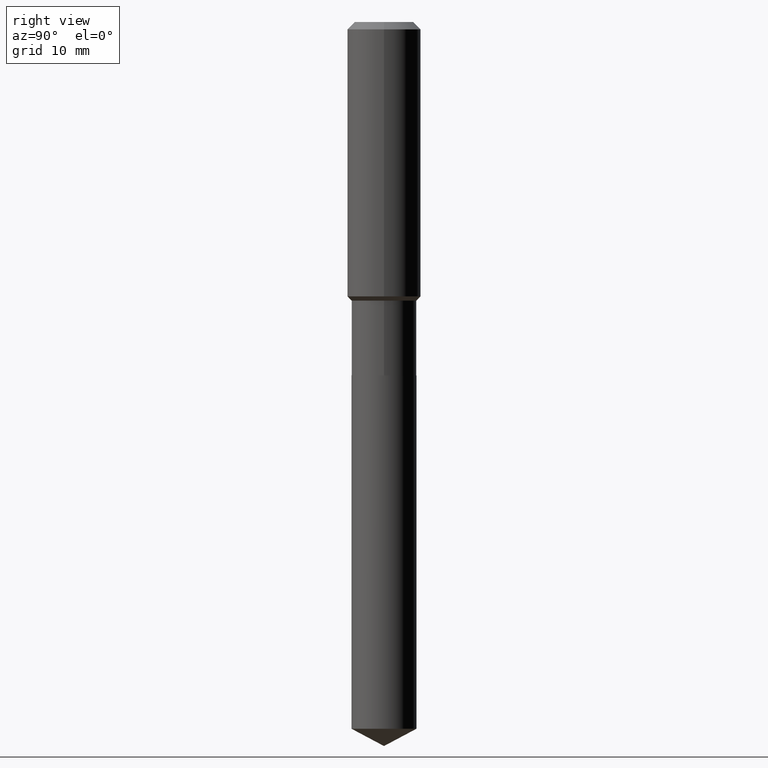
[diagram: clean part render]
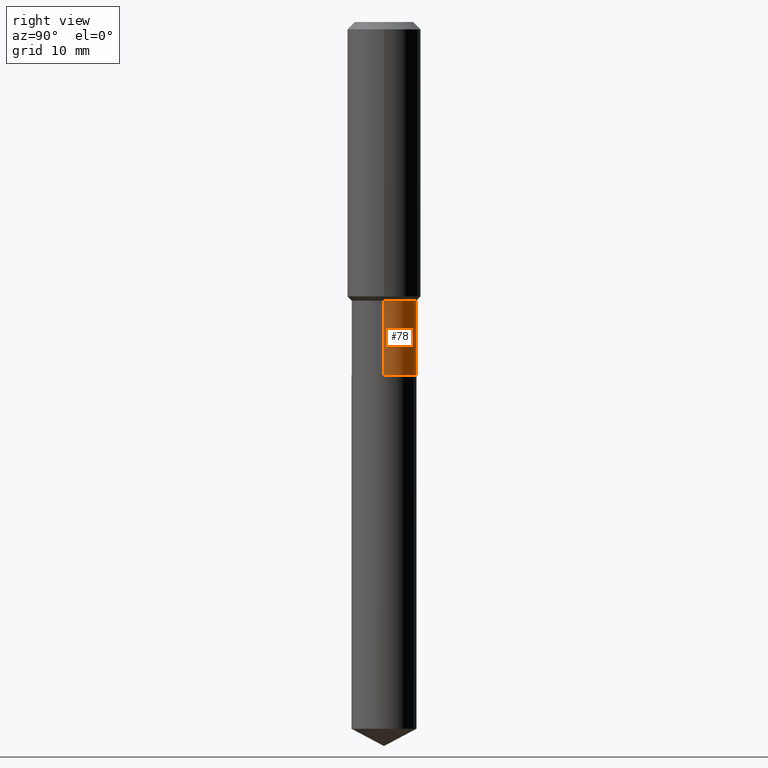
[diagram: same view with one face highlighted and labeled with its STEP entity id]
A machine part, right view. The second image highlights one B-rep face of the part: STEP entity #78.
In plain terms, the highlighted cylindrical surface (edge-blend (fillet) strip) has radius 5.2997 mm, axis along (-0, 0, 1).
Its self-contained STEP definition (entity closure, byte-faithful):
#6 = CARTESIAN_POINT ( 'NONE',  ( -0.2086499999999999744, 1.482547418163448856E-15, -1.026335806581685820E-29 ) ) ;
#11 = CARTESIAN_POINT ( 'NONE',  ( 0.2086500000000000021, -9.372881654124416326E-15, -2.267199999999999438 ) ) ;
#39 = EDGE_CURVE ( 'NONE', #198, #344, #358, .T. ) ;
#44 = CYLINDRICAL_SURFACE ( 'NONE', #304, 0.2086499999999999744 ) ;
#61 = VECTOR ( 'NONE', #334, 39.37007874015748143 ) ;
#77 = EDGE_LOOP ( 'NONE', ( #474, #107, #316, #153 ) ) ;
#78 = ADVANCED_FACE ( 'NONE', ( #244 ), #44, .T. ) ;
#82 = VERTEX_POINT ( 'NONE', #411 ) ;
#83 = VECTOR ( 'NONE', #315, 39.37007874015748143 ) ;
#107 = ORIENTED_EDGE ( 'NONE', *, *, #201, .T. ) ;
#110 = DIRECTION ( 'NONE',  ( -2.445468806185136597E-29, 3.491481338843145583E-15, 1.000000000000000000 ) ) ;
#133 = CARTESIAN_POINT ( 'NONE',  ( 4.372009131697785890E-29, -6.242070337583773496E-15, -1.787799999999999390 ) ) ;
#141 = CIRCLE ( 'NONE', #359, 0.2086499999999999466 ) ;
#147 = CARTESIAN_POINT ( 'NONE',  ( 5.544366877382941194E-29, -7.915886491425178171E-15, -2.267199999999999438 ) ) ;
#153 = ORIENTED_EDGE ( 'NONE', *, *, #387, .F. ) ;
#176 = DIRECTION ( 'NONE',  ( -2.445468806185136597E-29, 3.491481338843145583E-15, 1.000000000000000000 ) ) ;
#179 = CARTESIAN_POINT ( 'NONE',  ( -0.2086499999999999466, -5.596430996341026386E-15, -1.787799999999999390 ) ) ;
#198 = VERTEX_POINT ( 'NONE', #11 ) ;
#201 = EDGE_CURVE ( 'NONE', #344, #275, #259, .T. ) ;
#238 = DIRECTION ( 'NONE',  ( 1.000000000000000000, -6.982962677686265922E-15, 0.000000000000000000 ) ) ;
#244 = FACE_OUTER_BOUND ( 'NONE', #77, .T. ) ;
#259 = LINE ( 'NONE', #6, #83 ) ;
#275 = VERTEX_POINT ( 'NONE', #179 ) ;
#295 = LINE ( 'NONE', #368, #61 ) ;
#296 = AXIS2_PLACEMENT_3D ( 'NONE', #147, #419, #238 ) ;
#297 = CARTESIAN_POINT ( 'NONE',  ( -0.2086500000000000021, -5.596430996341025597E-15, -2.267199999999999438 ) ) ;
#302 = EDGE_CURVE ( 'NONE', #82, #275, #141, .T. ) ;
#304 = AXIS2_PLACEMENT_3D ( 'NONE', #375, #110, #441 ) ;
#315 = DIRECTION ( 'NONE',  ( -2.445468806185136877E-29, 3.491481338843145188E-15, 1.000000000000000000 ) ) ;
#316 = ORIENTED_EDGE ( 'NONE', *, *, #302, .F. ) ;
#334 = DIRECTION ( 'NONE',  ( -2.445468806185136877E-29, 3.491481338843145188E-15, 1.000000000000000000 ) ) ;
#344 = VERTEX_POINT ( 'NONE', #297 ) ;
#358 = CIRCLE ( 'NONE', #296, 0.2086500000000000021 ) ;
#359 = AXIS2_PLACEMENT_3D ( 'NONE', #133, #176, #439 ) ;
#368 = CARTESIAN_POINT ( 'NONE',  ( 0.2086499999999999744, -1.456995162699239338E-15, 1.017414284269821845E-29 ) ) ;
#375 = CARTESIAN_POINT ( 'NONE',  ( 0.000000000000000000, 0.000000000000000000, 0.000000000000000000 ) ) ;
#387 = EDGE_CURVE ( 'NONE', #198, #82, #295, .T. ) ;
#411 = CARTESIAN_POINT ( 'NONE',  ( 0.2086499999999999466, -7.699065500283012440E-15, -1.787799999999999390 ) ) ;
#419 = DIRECTION ( 'NONE',  ( -2.445468806185136597E-29, 3.491481338843145583E-15, 1.000000000000000000 ) ) ;
#439 = DIRECTION ( 'NONE',  ( 1.000000000000000000, -6.982962677686267499E-15, 0.000000000000000000 ) ) ;
#441 = DIRECTION ( 'NONE',  ( 1.000000000000000000, -6.982962677686266711E-15, 4.876176775795935793E-29 ) ) ;
#474 = ORIENTED_EDGE ( 'NONE', *, *, #39, .T. ) ;